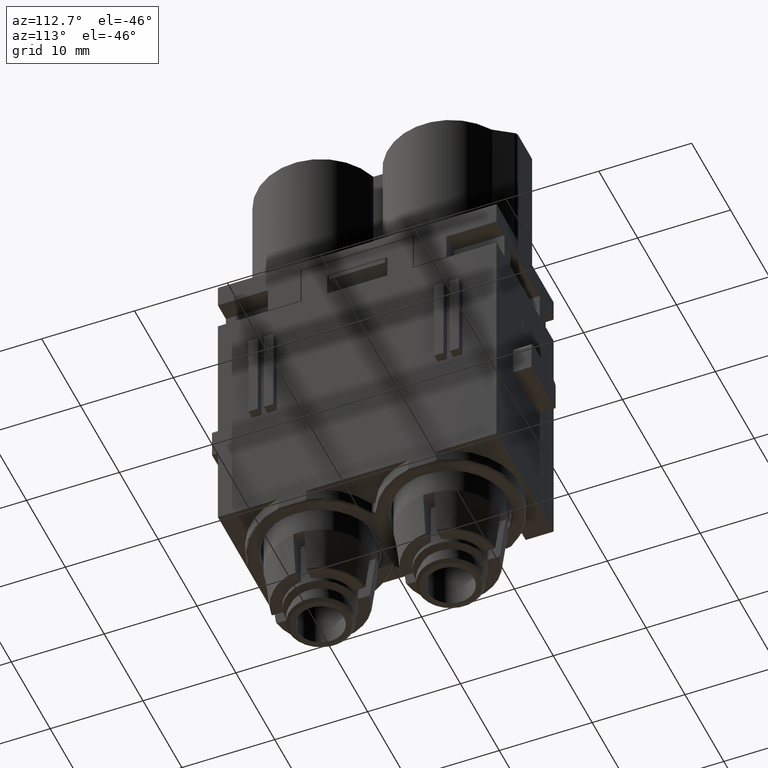
[diagram: clean part render]
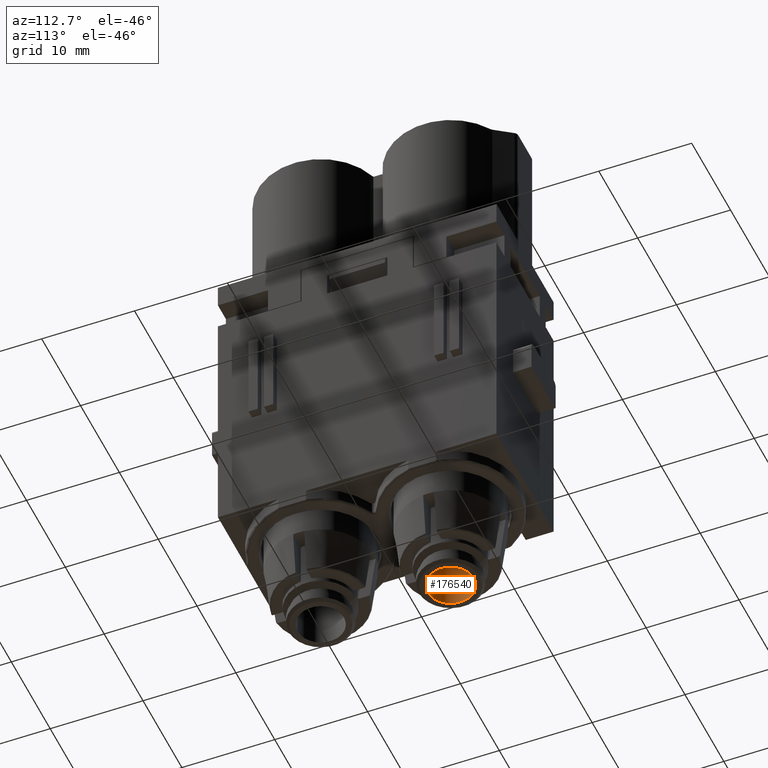
[diagram: same view with one face highlighted and labeled with its STEP entity id]
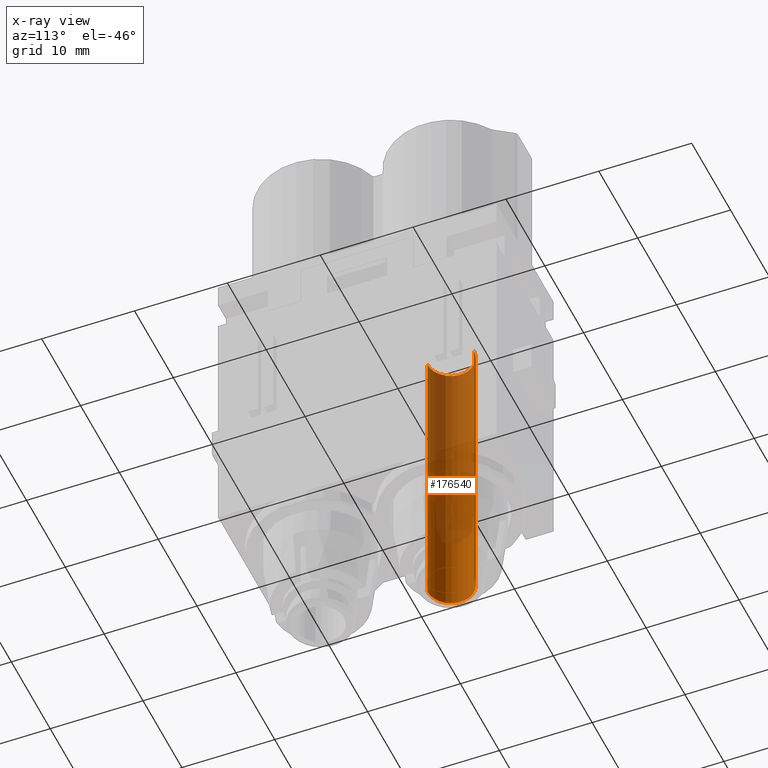
[diagram: x-ray of the same camera — body ghosted, the highlighted face saturated]
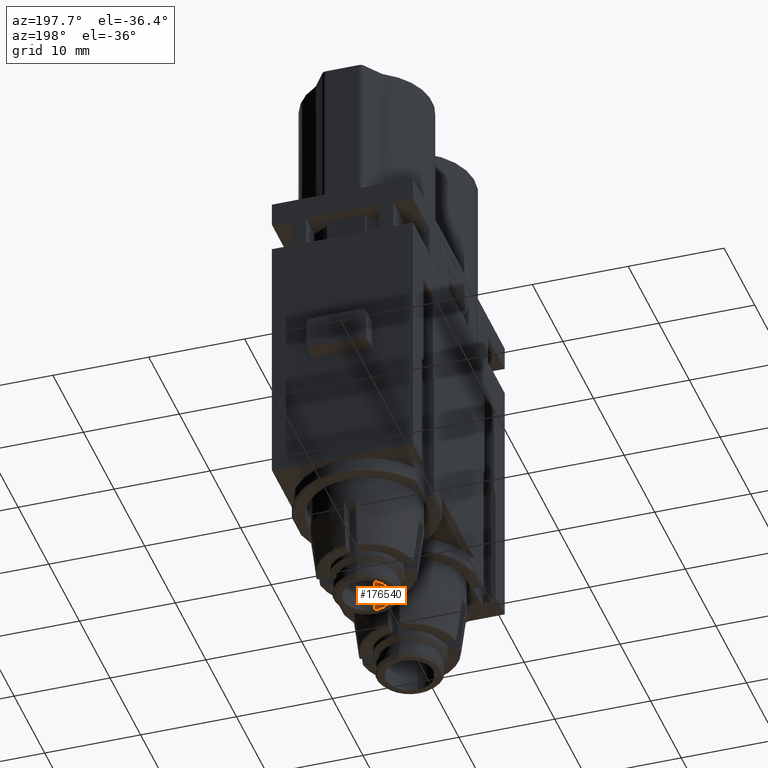
[diagram: same view with one face highlighted and labeled with its STEP entity id]
A machine part, auxiliary view. The second image highlights one B-rep face of the part: STEP entity #176540.
The next image is the same camera in x-ray: the body ghosted, the highlighted face saturated — about 69% of this face is hidden behind the body in this view.
A second angle (auxiliary view) of the same face is appended — the face is thin or edge-on in the first view.
In plain terms, the highlighted cylindrical surface (edge-blend (fillet) strip) has radius 2.5 mm, axis along (0, -0, -1).
Its self-contained STEP definition (entity closure, byte-faithful):
#175950=CARTESIAN_POINT('',(66.6468229999995,73.9545149999995,
-59.0999999999997));
#175960=DIRECTION('',(5.54667823983524E-32,-1.34358327811634E-75,-1.));
#175970=DIRECTION('',(2.42232056741089E-44,1.,-1.97215226305253E-31));
#175980=AXIS2_PLACEMENT_3D('',#175950,#175960,#175970);
#175990=CIRCLE('',#175980,2.5);
#176000=CARTESIAN_POINT('',(66.6468229999995,76.4545149999995,
-59.0999999999997));
#176010=VERTEX_POINT('',#176000);
#176020=CARTESIAN_POINT('',(66.6468229999995,71.4545149999995,
-59.0999999999997));
#176030=VERTEX_POINT('',#176020);
#176060=EDGE_CURVE('',#176030,#176010,#175990,.T.);
#176230=CARTESIAN_POINT('',(66.6468229999995,73.9545149999995,
-41.8499999999997));
#176240=DIRECTION('',(5.54667823983524E-32,-1.34358327811634E-75,-1.));
#176250=DIRECTION('',(-2.42232056741089E-44,-1.,1.97215226305253E-31));
#176260=AXIS2_PLACEMENT_3D('',#176230,#176240,#176250);
#176270=CYLINDRICAL_SURFACE('',#176260,2.5);
#176280=CARTESIAN_POINT('',(66.6468229999995,71.4545149999995,
-41.8499999999997));
#176290=DIRECTION('',(5.54667823983524E-32,-1.34358327811634E-75,-1.));
#176300=VECTOR('',#176290,1.);
#176310=LINE('',#176280,#176300);
#176320=CARTESIAN_POINT('',(66.6468229999995,71.4545149999995,
-26.5999999999997));
#176330=VERTEX_POINT('',#176320);
#176340=EDGE_CURVE('',#176330,#176030,#176310,.T.);
#176350=ORIENTED_EDGE('',*,*,#176340,.T.);
#176360=CARTESIAN_POINT('',(66.6468229999995,73.9545149999995,
-26.5999999999997));
#176370=DIRECTION('',(5.54667823983524E-32,-1.34358327811634E-75,-1.));
#176380=DIRECTION('',(2.42232056741089E-44,1.,-1.97215226305253E-31));
#176390=AXIS2_PLACEMENT_3D('',#176360,#176370,#176380);
#176400=CIRCLE('',#176390,2.5);
#176410=CARTESIAN_POINT('',(66.6468229999995,76.4545149999995,
-26.5999999999997));
#176420=VERTEX_POINT('',#176410);
#176430=EDGE_CURVE('',#176330,#176420,#176400,.T.);
#176440=ORIENTED_EDGE('',*,*,#176430,.F.);
#176450=CARTESIAN_POINT('',(66.6468229999995,76.4545149999995,
-41.8499999999997));
#176460=DIRECTION('',(5.54667823983524E-32,-1.34358327811634E-75,-1.));
#176470=VECTOR('',#176460,1.);
#176480=LINE('',#176450,#176470);
#176490=EDGE_CURVE('',#176420,#176010,#176480,.T.);
#176500=ORIENTED_EDGE('',*,*,#176490,.F.);
#176510=ORIENTED_EDGE('',*,*,#176060,.T.);
#176520=EDGE_LOOP('',(#176510,#176500,#176440,#176350));
#176530=FACE_OUTER_BOUND('',#176520,.T.);
#176540=ADVANCED_FACE('',(#176530),#176270,.F.);